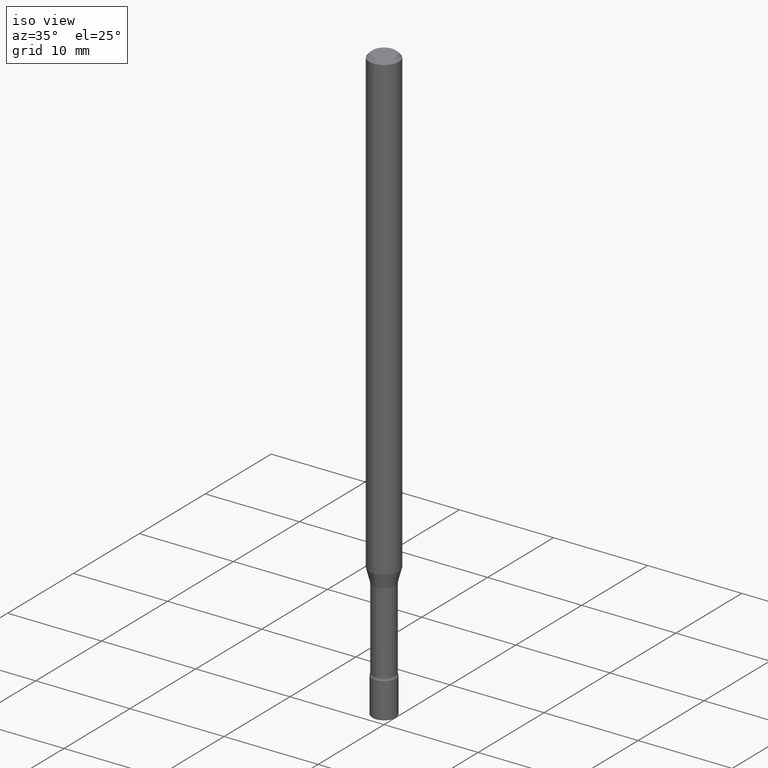
[diagram: clean part render]
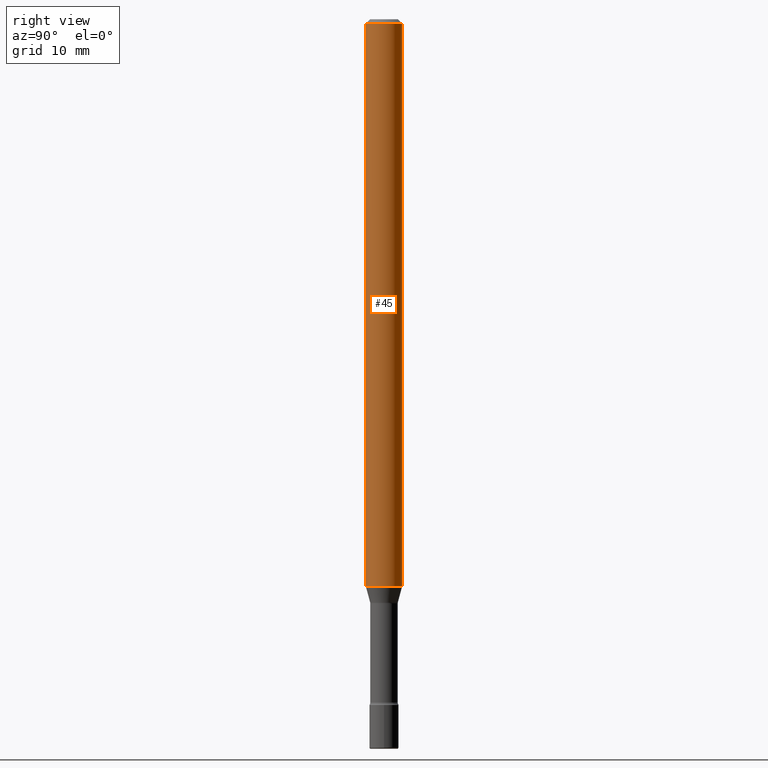
[diagram: tour spotlight — one face highlighted and labeled with its STEP entity id]
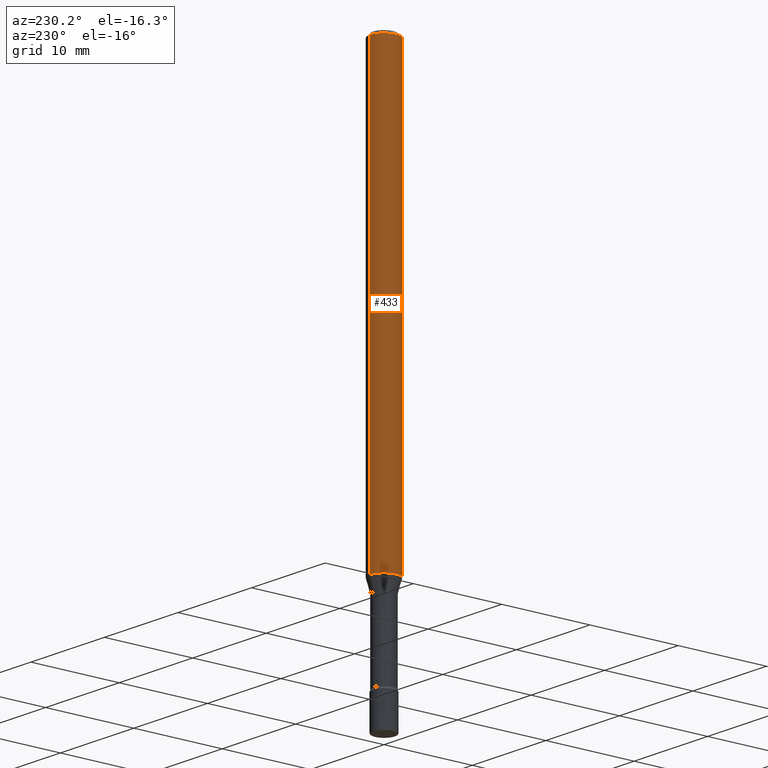
[diagram: tour spotlight — one face highlighted and labeled with its STEP entity id]
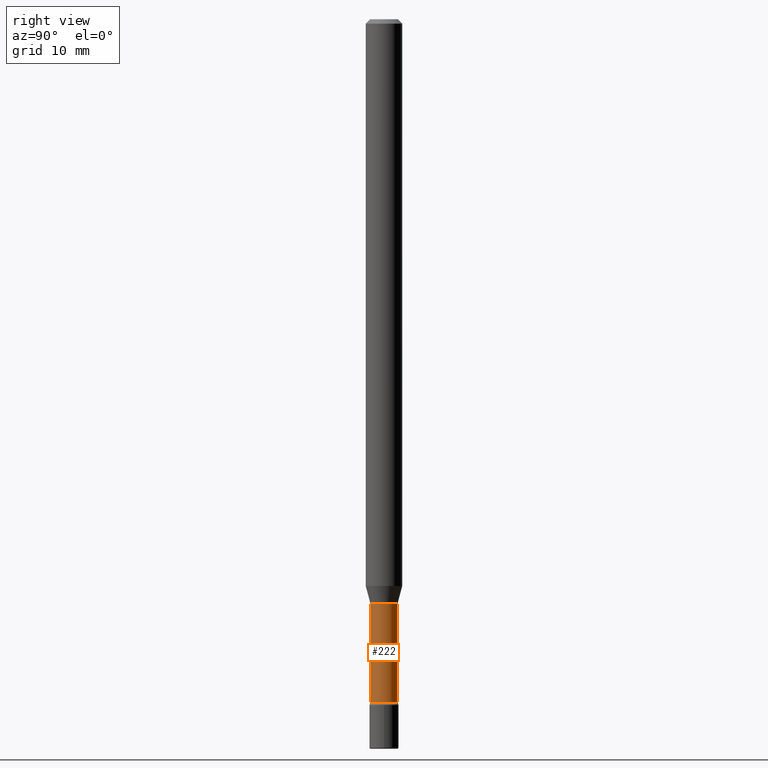
[diagram: tour spotlight — one face highlighted and labeled with its STEP entity id]
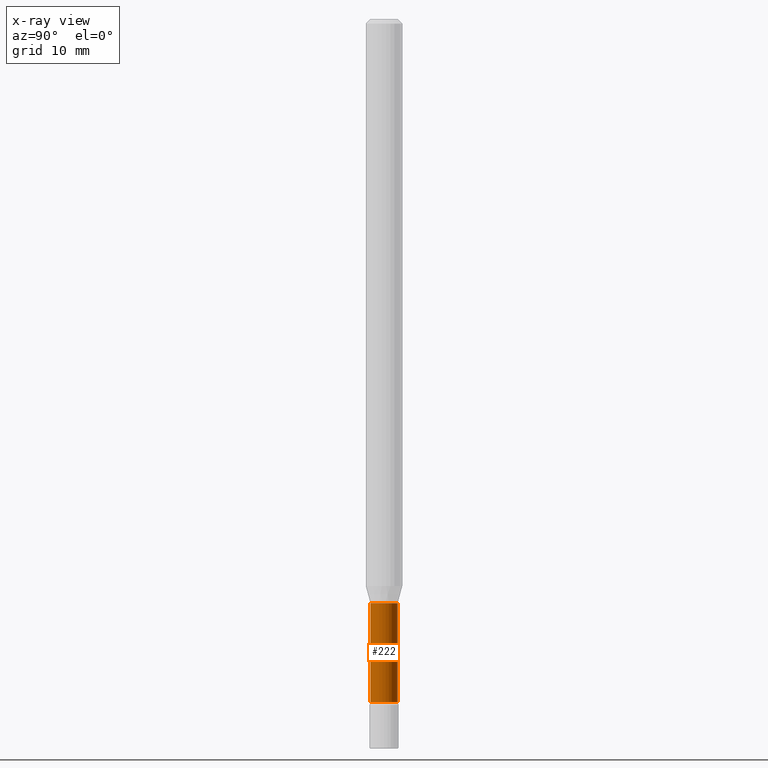
[diagram: x-ray of the same camera — body ghosted, this tour face saturated]
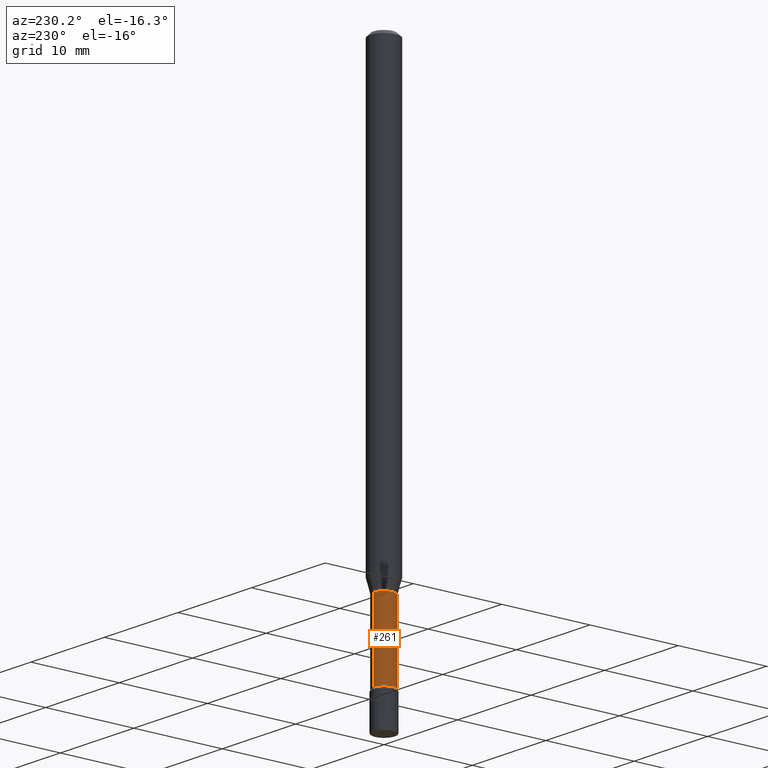
[diagram: tour spotlight — one face highlighted and labeled with its STEP entity id]
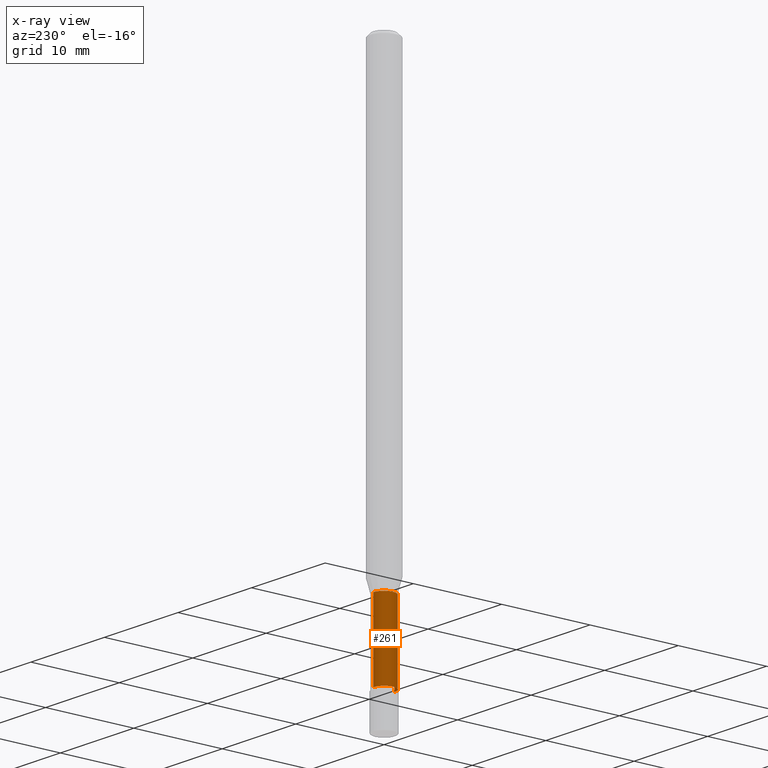
[diagram: x-ray of the same camera — body ghosted, this tour face saturated]
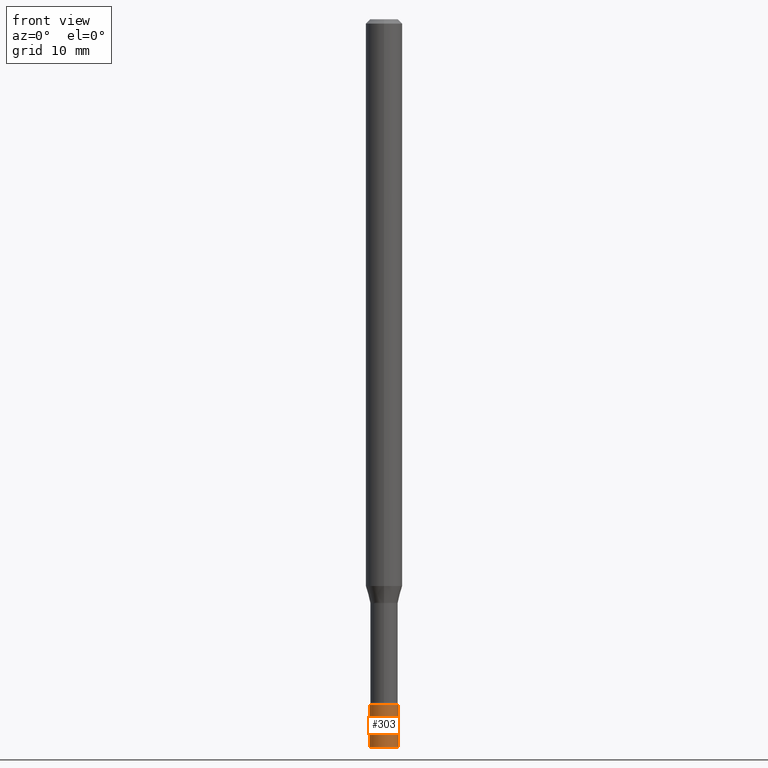
[diagram: tour spotlight — one face highlighted and labeled with its STEP entity id]
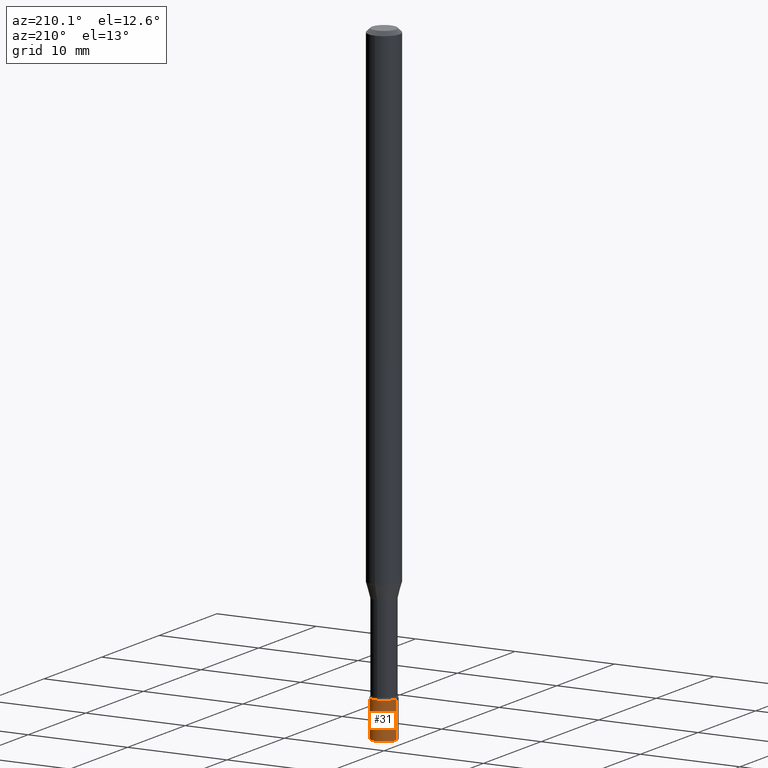
[diagram: tour spotlight — one face highlighted and labeled with its STEP entity id]
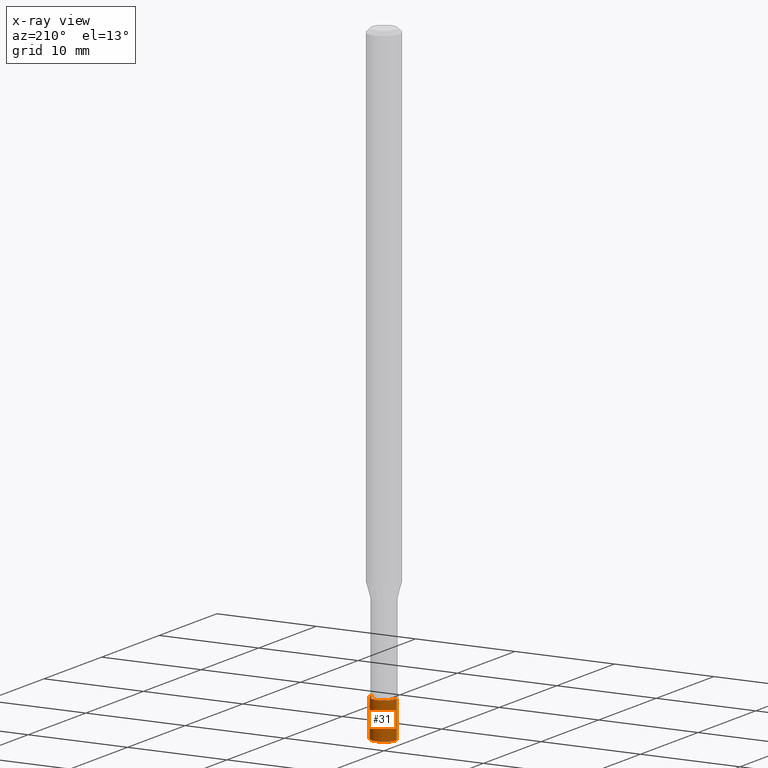
[diagram: x-ray of the same camera — body ghosted, this tour face saturated]
A machine part: a face-by-face anatomy tour. The part has 20 B-rep faces; the first image is the clean iso view, then the 6 largest visible faces are spotlighted one at a time (largest first), each with its STEP entity span.

Face 1 — right view, entity #45. In plain terms, the highlighted cylindrical surface (edge-blend (fillet) strip) has radius 1.5875 mm, axis along (-0, 0, 1).
Definition (entity closure, byte-faithful):
#3 = CARTESIAN_POINT ( 'NONE',  ( -1.169113584055446105E-44, 1.669184350826100908E-30, 4.780733988912460139E-16 ) ) ;
#39 = DIRECTION ( 'NONE',  ( -2.445484649858063703E-29, 3.491458649801748196E-15, 1.000000000000000000 ) ) ;
#45 = ADVANCED_FACE ( 'NONE', ( #59 ), #529, .T. ) ;
#49 = DIRECTION ( 'NONE',  ( -2.445484649858063983E-29, 3.491458649801747802E-15, 1.000000000000000000 ) ) ;
#57 = EDGE_LOOP ( 'NONE', ( #300, #411, #140, #409 ) ) ;
#59 = FACE_OUTER_BOUND ( 'NONE', #57, .T. ) ;
#69 = DIRECTION ( 'NONE',  ( -6.982962677686265922E-15, -1.000000000000000000, 3.491458649801747407E-15 ) ) ;
#116 = CARTESIAN_POINT ( 'NONE',  ( 4.440892098500625669E-16, 0.06250000000000000000, 2.598572332786367763E-16 ) ) ;
#140 = ORIENTED_EDGE ( 'NONE', *, *, #336, .F. ) ;
#147 = EDGE_CURVE ( 'NONE', #487, #272, #471, .T. ) ;
#169 = DIRECTION ( 'NONE',  ( -6.982962677686265922E-15, -1.000000000000000000, 4.370956789862821150E-15 ) ) ;
#191 = AXIS2_PLACEMENT_3D ( 'NONE', #436, #39, #169 ) ;
#212 = VECTOR ( 'NONE', #49, 39.37007874015748143 ) ;
#214 = CARTESIAN_POINT ( 'NONE',  ( -4.364351673553912750E-16, -0.06250000000000005551, -0.01499999999999981036 ) ) ;
#218 = CARTESIAN_POINT ( 'NONE',  ( -4.364351673553439433E-16, -0.06250000000000675848, -1.942153212482682134 ) ) ;
#272 = VERTEX_POINT ( 'NONE', #392 ) ;
#280 = AXIS2_PLACEMENT_3D ( 'NONE', #3, #423, #69 ) ;
#289 = VECTOR ( 'NONE', #331, 39.37007874015748143 ) ;
#300 = ORIENTED_EDGE ( 'NONE', *, *, #353, .T. ) ;
#304 = CARTESIAN_POINT ( 'NONE',  ( 3.668226974787102280E-31, -5.237187974702632377E-17, -0.01500000000000002720 ) ) ;
#315 = VERTEX_POINT ( 'NONE', #214 ) ;
#331 = DIRECTION ( 'NONE',  ( -2.445484649858063983E-29, 3.491458649801747802E-15, 1.000000000000000000 ) ) ;
#336 = EDGE_CURVE ( 'NONE', #315, #272, #476, .T. ) ;
#353 = EDGE_CURVE ( 'NONE', #458, #487, #425, .T. ) ;
#392 = CARTESIAN_POINT ( 'NONE',  ( 4.440892098501103423E-16, 0.06249999999999993755, -0.01500000000000024578 ) ) ;
#401 = CARTESIAN_POINT ( 'NONE',  ( 4.440892098501102436E-16, 0.06249999999999325540, -1.942153212482682800 ) ) ;
#409 = ORIENTED_EDGE ( 'NONE', *, *, #530, .F. ) ;
#411 = ORIENTED_EDGE ( 'NONE', *, *, #147, .T. ) ;
#423 = DIRECTION ( 'NONE',  ( -2.445484649858063703E-29, 3.491458649801748196E-15, 1.000000000000000000 ) ) ;
#425 = CIRCLE ( 'NONE', #191, 0.06250000000000000000 ) ;
#435 = AXIS2_PLACEMENT_3D ( 'NONE', #304, #519, #553 ) ;
#436 = CARTESIAN_POINT ( 'NONE',  ( 4.749505868798926460E-29, -6.780947632962913740E-15, -1.942153212482682578 ) ) ;
#458 = VERTEX_POINT ( 'NONE', #218 ) ;
#471 = LINE ( 'NONE', #116, #289 ) ;
#476 = CIRCLE ( 'NONE', #435, 0.06250000000000000000 ) ;
#486 = CARTESIAN_POINT ( 'NONE',  ( -4.364351673553916201E-16, -0.06250000000000000000, 6.962895645038553008E-16 ) ) ;
#487 = VERTEX_POINT ( 'NONE', #401 ) ;
#519 = DIRECTION ( 'NONE',  ( -2.445484649858063703E-29, 3.491458649801748196E-15, 1.000000000000000000 ) ) ;
#529 = CYLINDRICAL_SURFACE ( 'NONE', #280, 0.06250000000000000000 ) ;
#530 = EDGE_CURVE ( 'NONE', #458, #315, #571, .T. ) ;
#553 = DIRECTION ( 'NONE',  ( -6.982962677686265922E-15, -1.000000000000000000, 3.483106191921935554E-15 ) ) ;
#571 = LINE ( 'NONE', #486, #212 ) ;

Face 2 — auxiliary view, entity #433. In plain terms, the highlighted cylindrical surface (edge-blend (fillet) strip) has radius 1.5875 mm, axis along (-0, 0, 1).
Definition (entity closure, byte-faithful):
#10 = CYLINDRICAL_SURFACE ( 'NONE', #491, 0.06250000000000000000 ) ;
#49 = DIRECTION ( 'NONE',  ( -2.445484649858063983E-29, 3.491458649801747802E-15, 1.000000000000000000 ) ) ;
#65 = CARTESIAN_POINT ( 'NONE',  ( 3.668226974787102280E-31, -5.237187974702632377E-17, -0.01500000000000002720 ) ) ;
#83 = EDGE_CURVE ( 'NONE', #487, #458, #555, .T. ) ;
#97 = AXIS2_PLACEMENT_3D ( 'NONE', #150, #332, #151 ) ;
#116 = CARTESIAN_POINT ( 'NONE',  ( 4.440892098500625669E-16, 0.06250000000000000000, 2.598572332786367763E-16 ) ) ;
#120 = EDGE_CURVE ( 'NONE', #272, #315, #389, .T. ) ;
#132 = EDGE_LOOP ( 'NONE', ( #165, #509, #466, #186 ) ) ;
#147 = EDGE_CURVE ( 'NONE', #487, #272, #471, .T. ) ;
#150 = CARTESIAN_POINT ( 'NONE',  ( 4.749505868798926460E-29, -6.780947632962913740E-15, -1.942153212482682578 ) ) ;
#151 = DIRECTION ( 'NONE',  ( -6.982962677686265922E-15, -1.000000000000000000, 4.370956789862821150E-15 ) ) ;
#154 = DIRECTION ( 'NONE',  ( -6.982962677686265922E-15, -1.000000000000000000, 3.483106191921935554E-15 ) ) ;
#165 = ORIENTED_EDGE ( 'NONE', *, *, #147, .F. ) ;
#186 = ORIENTED_EDGE ( 'NONE', *, *, #120, .F. ) ;
#189 = DIRECTION ( 'NONE',  ( -2.445484649858063703E-29, 3.491458649801748196E-15, 1.000000000000000000 ) ) ;
#212 = VECTOR ( 'NONE', #49, 39.37007874015748143 ) ;
#214 = CARTESIAN_POINT ( 'NONE',  ( -4.364351673553912750E-16, -0.06250000000000005551, -0.01499999999999981036 ) ) ;
#218 = CARTESIAN_POINT ( 'NONE',  ( -4.364351673553439433E-16, -0.06250000000000675848, -1.942153212482682134 ) ) ;
#227 = DIRECTION ( 'NONE',  ( -6.982962677686265922E-15, -1.000000000000000000, 3.491458649801747407E-15 ) ) ;
#272 = VERTEX_POINT ( 'NONE', #392 ) ;
#275 = FACE_OUTER_BOUND ( 'NONE', #132, .T. ) ;
#289 = VECTOR ( 'NONE', #331, 39.37007874015748143 ) ;
#315 = VERTEX_POINT ( 'NONE', #214 ) ;
#331 = DIRECTION ( 'NONE',  ( -2.445484649858063983E-29, 3.491458649801747802E-15, 1.000000000000000000 ) ) ;
#332 = DIRECTION ( 'NONE',  ( -2.445484649858063703E-29, 3.491458649801748196E-15, 1.000000000000000000 ) ) ;
#374 = DIRECTION ( 'NONE',  ( -2.445484649858063703E-29, 3.491458649801748196E-15, 1.000000000000000000 ) ) ;
#389 = CIRCLE ( 'NONE', #512, 0.06250000000000000000 ) ;
#392 = CARTESIAN_POINT ( 'NONE',  ( 4.440892098501103423E-16, 0.06249999999999993755, -0.01500000000000024578 ) ) ;
#401 = CARTESIAN_POINT ( 'NONE',  ( 4.440892098501102436E-16, 0.06249999999999325540, -1.942153212482682800 ) ) ;
#433 = ADVANCED_FACE ( 'NONE', ( #275 ), #10, .T. ) ;
#454 = CARTESIAN_POINT ( 'NONE',  ( -1.169113584055446105E-44, 1.669184350826100908E-30, 4.780733988912460139E-16 ) ) ;
#458 = VERTEX_POINT ( 'NONE', #218 ) ;
#466 = ORIENTED_EDGE ( 'NONE', *, *, #530, .T. ) ;
#471 = LINE ( 'NONE', #116, #289 ) ;
#486 = CARTESIAN_POINT ( 'NONE',  ( -4.364351673553916201E-16, -0.06250000000000000000, 6.962895645038553008E-16 ) ) ;
#487 = VERTEX_POINT ( 'NONE', #401 ) ;
#491 = AXIS2_PLACEMENT_3D ( 'NONE', #454, #189, #227 ) ;
#509 = ORIENTED_EDGE ( 'NONE', *, *, #83, .T. ) ;
#512 = AXIS2_PLACEMENT_3D ( 'NONE', #65, #374, #154 ) ;
#530 = EDGE_CURVE ( 'NONE', #458, #315, #571, .T. ) ;
#555 = CIRCLE ( 'NONE', #97, 0.06250000000000000000 ) ;
#571 = LINE ( 'NONE', #486, #212 ) ;

Face 3 — right view, entity #222. An x-ray twin of the same camera follows (body ghosted, this face saturated) — the face is partly hidden behind the body. In plain terms, the highlighted cylindrical surface (edge-blend (fillet) strip) has radius 1.1938 mm, axis along (-0, 0, 1).
Definition (entity closure, byte-faithful):
#1 = LINE ( 'NONE', #183, #16 ) ;
#5 = LINE ( 'NONE', #251, #171 ) ;
#15 = ORIENTED_EDGE ( 'NONE', *, *, #540, .T. ) ;
#16 = VECTOR ( 'NONE', #361, 39.37007874015748143 ) ;
#21 = VERTEX_POINT ( 'NONE', #225 ) ;
#68 = CIRCLE ( 'NONE', #143, 0.04700000000000000705 ) ;
#84 = FACE_OUTER_BOUND ( 'NONE', #208, .T. ) ;
#119 = DIRECTION ( 'NONE',  ( -6.982962677686265922E-15, -1.000000000000000000, 3.491458649801746619E-15 ) ) ;
#127 = ORIENTED_EDGE ( 'NONE', *, *, #546, .F. ) ;
#130 = EDGE_CURVE ( 'NONE', #278, #21, #68, .T. ) ;
#134 = CARTESIAN_POINT ( 'NONE',  ( 3.339550858073042806E-16, 0.04699999999999300571, -2.001974787463811190 ) ) ;
#141 = DIRECTION ( 'NONE',  ( -2.445484649858063703E-29, 3.491458649801748196E-15, 1.000000000000000000 ) ) ;
#143 = AXIS2_PLACEMENT_3D ( 'NONE', #243, #507, #431 ) ;
#171 = VECTOR ( 'NONE', #325, 39.37007874015748143 ) ;
#183 = CARTESIAN_POINT ( 'NONE',  ( 3.339550858072470388E-16, 0.04700000000000000705, 3.139748423505638775E-16 ) ) ;
#193 = ORIENTED_EDGE ( 'NONE', *, *, #448, .F. ) ;
#208 = EDGE_LOOP ( 'NONE', ( #452, #15, #193, #127 ) ) ;
#210 = DIRECTION ( 'NONE',  ( -2.445484649858063703E-29, 3.491458649801748196E-15, 1.000000000000000000 ) ) ;
#222 = ADVANCED_FACE ( 'NONE', ( #84 ), #260, .T. ) ;
#225 = CARTESIAN_POINT ( 'NONE',  ( 3.446132268437060393E-16, 0.04699999999999183303, -2.341000000000000192 ) ) ;
#243 = CARTESIAN_POINT ( 'NONE',  ( 5.724879565317726717E-29, -8.173504699185892323E-15, -2.340999999999999748 ) ) ;
#251 = CARTESIAN_POINT ( 'NONE',  ( -3.281992458512545531E-16, -0.04700000000000000705, 6.421719554319281504E-16 ) ) ;
#260 = CYLINDRICAL_SURFACE ( 'NONE', #398, 0.04700000000000000705 ) ;
#278 = VERTEX_POINT ( 'NONE', #395 ) ;
#323 = DIRECTION ( 'NONE',  ( -6.982962677686265922E-15, -1.000000000000000000, 5.812442539711197800E-15 ) ) ;
#325 = DIRECTION ( 'NONE',  ( -2.445484649858063983E-29, 3.491458649801747802E-15, 1.000000000000000000 ) ) ;
#330 = AXIS2_PLACEMENT_3D ( 'NONE', #358, #141, #323 ) ;
#344 = CARTESIAN_POINT ( 'NONE',  ( -3.281992458512055945E-16, -0.04700000000000699452, -2.001974787463810745 ) ) ;
#346 = CARTESIAN_POINT ( 'NONE',  ( -1.169113584055446105E-44, 1.669184350826100908E-30, 4.780733988912460139E-16 ) ) ;
#358 = CARTESIAN_POINT ( 'NONE',  ( 4.895798612145609407E-29, -6.989812188375539244E-15, -2.001974787463811190 ) ) ;
#361 = DIRECTION ( 'NONE',  ( -2.445484649858063983E-29, 3.491458649801747802E-15, 1.000000000000000000 ) ) ;
#395 = CARTESIAN_POINT ( 'NONE',  ( -3.281992458511972621E-16, -0.04700000000000817413, -2.340999999999999304 ) ) ;
#398 = AXIS2_PLACEMENT_3D ( 'NONE', #346, #210, #119 ) ;
#418 = CIRCLE ( 'NONE', #330, 0.04700000000000000705 ) ;
#431 = DIRECTION ( 'NONE',  ( -6.982962677686265922E-15, -1.000000000000000000, 5.812442539711197800E-15 ) ) ;
#448 = EDGE_CURVE ( 'NONE', #569, #463, #418, .T. ) ;
#452 = ORIENTED_EDGE ( 'NONE', *, *, #130, .T. ) ;
#463 = VERTEX_POINT ( 'NONE', #134 ) ;
#507 = DIRECTION ( 'NONE',  ( -2.445484649858063703E-29, 3.491458649801748196E-15, 1.000000000000000000 ) ) ;
#540 = EDGE_CURVE ( 'NONE', #21, #463, #1, .T. ) ;
#546 = EDGE_CURVE ( 'NONE', #278, #569, #5, .T. ) ;
#569 = VERTEX_POINT ( 'NONE', #344 ) ;

Face 4 — auxiliary view, entity #261. An x-ray twin of the same camera follows (body ghosted, this face saturated) — the face is partly hidden behind the body. In plain terms, the highlighted cylindrical surface (edge-blend (fillet) strip) has radius 1.1938 mm, axis along (-0, 0, 1).
Definition (entity closure, byte-faithful):
#1 = LINE ( 'NONE', #183, #16 ) ;
#5 = LINE ( 'NONE', #251, #171 ) ;
#16 = VECTOR ( 'NONE', #361, 39.37007874015748143 ) ;
#20 = DIRECTION ( 'NONE',  ( -6.982962677686265922E-15, -1.000000000000000000, 5.812442539711197800E-15 ) ) ;
#21 = VERTEX_POINT ( 'NONE', #225 ) ;
#28 = CARTESIAN_POINT ( 'NONE',  ( 4.895798612145609407E-29, -6.989812188375539244E-15, -2.001974787463811190 ) ) ;
#79 = DIRECTION ( 'NONE',  ( -6.982962677686265922E-15, -1.000000000000000000, 3.491458649801746619E-15 ) ) ;
#90 = ORIENTED_EDGE ( 'NONE', *, *, #540, .F. ) ;
#100 = CARTESIAN_POINT ( 'NONE',  ( 5.724879565317726717E-29, -8.173504699185892323E-15, -2.340999999999999748 ) ) ;
#113 = EDGE_CURVE ( 'NONE', #463, #569, #563, .T. ) ;
#134 = CARTESIAN_POINT ( 'NONE',  ( 3.339550858073042806E-16, 0.04699999999999300571, -2.001974787463811190 ) ) ;
#145 = DIRECTION ( 'NONE',  ( -2.445484649858063703E-29, 3.491458649801748196E-15, 1.000000000000000000 ) ) ;
#170 = AXIS2_PLACEMENT_3D ( 'NONE', #100, #145, #413 ) ;
#171 = VECTOR ( 'NONE', #325, 39.37007874015748143 ) ;
#183 = CARTESIAN_POINT ( 'NONE',  ( 3.339550858072470388E-16, 0.04700000000000000705, 3.139748423505638775E-16 ) ) ;
#225 = CARTESIAN_POINT ( 'NONE',  ( 3.446132268437060393E-16, 0.04699999999999183303, -2.341000000000000192 ) ) ;
#240 = ORIENTED_EDGE ( 'NONE', *, *, #424, .T. ) ;
#251 = CARTESIAN_POINT ( 'NONE',  ( -3.281992458512545531E-16, -0.04700000000000000705, 6.421719554319281504E-16 ) ) ;
#261 = ADVANCED_FACE ( 'NONE', ( #566 ), #340, .T. ) ;
#278 = VERTEX_POINT ( 'NONE', #395 ) ;
#301 = DIRECTION ( 'NONE',  ( -2.445484649858063703E-29, 3.491458649801748196E-15, 1.000000000000000000 ) ) ;
#321 = AXIS2_PLACEMENT_3D ( 'NONE', #28, #326, #20 ) ;
#325 = DIRECTION ( 'NONE',  ( -2.445484649858063983E-29, 3.491458649801747802E-15, 1.000000000000000000 ) ) ;
#326 = DIRECTION ( 'NONE',  ( -2.445484649858063703E-29, 3.491458649801748196E-15, 1.000000000000000000 ) ) ;
#327 = EDGE_LOOP ( 'NONE', ( #90, #240, #517, #449 ) ) ;
#340 = CYLINDRICAL_SURFACE ( 'NONE', #541, 0.04700000000000000705 ) ;
#344 = CARTESIAN_POINT ( 'NONE',  ( -3.281992458512055945E-16, -0.04700000000000699452, -2.001974787463810745 ) ) ;
#361 = DIRECTION ( 'NONE',  ( -2.445484649858063983E-29, 3.491458649801747802E-15, 1.000000000000000000 ) ) ;
#395 = CARTESIAN_POINT ( 'NONE',  ( -3.281992458511972621E-16, -0.04700000000000817413, -2.340999999999999304 ) ) ;
#413 = DIRECTION ( 'NONE',  ( -6.982962677686265922E-15, -1.000000000000000000, 5.812442539711197800E-15 ) ) ;
#424 = EDGE_CURVE ( 'NONE', #21, #278, #468, .T. ) ;
#449 = ORIENTED_EDGE ( 'NONE', *, *, #113, .F. ) ;
#463 = VERTEX_POINT ( 'NONE', #134 ) ;
#468 = CIRCLE ( 'NONE', #170, 0.04700000000000000705 ) ;
#517 = ORIENTED_EDGE ( 'NONE', *, *, #546, .T. ) ;
#525 = CARTESIAN_POINT ( 'NONE',  ( -1.169113584055446105E-44, 1.669184350826100908E-30, 4.780733988912460139E-16 ) ) ;
#540 = EDGE_CURVE ( 'NONE', #21, #463, #1, .T. ) ;
#541 = AXIS2_PLACEMENT_3D ( 'NONE', #525, #301, #79 ) ;
#546 = EDGE_CURVE ( 'NONE', #278, #569, #5, .T. ) ;
#563 = CIRCLE ( 'NONE', #321, 0.04700000000000000705 ) ;
#566 = FACE_OUTER_BOUND ( 'NONE', #327, .T. ) ;
#569 = VERTEX_POINT ( 'NONE', #344 ) ;

Face 5 — front view, entity #303. In plain terms, the highlighted cylindrical surface (edge-blend (fillet) strip) has radius 1.27 mm, axis along (-0, 0, 1).
Definition (entity closure, byte-faithful):
#7 = ORIENTED_EDGE ( 'NONE', *, *, #199, .F. ) ;
#17 = LINE ( 'NONE', #194, #461 ) ;
#18 = EDGE_CURVE ( 'NONE', #228, #111, #451, .T. ) ;
#48 = ORIENTED_EDGE ( 'NONE', *, *, #155, .T. ) ;
#63 = AXIS2_PLACEMENT_3D ( 'NONE', #352, #168, #75 ) ;
#75 = DIRECTION ( 'NONE',  ( 1.000000000000000000, -6.982962677686267499E-15, 4.876176775795936353E-29 ) ) ;
#111 = VERTEX_POINT ( 'NONE', #510 ) ;
#115 = AXIS2_PLACEMENT_3D ( 'NONE', #544, #299, #499 ) ;
#152 = EDGE_LOOP ( 'NONE', ( #7, #48, #366, #338 ) ) ;
#155 = EDGE_CURVE ( 'NONE', #255, #362, #297, .T. ) ;
#160 = DIRECTION ( 'NONE',  ( -2.445468806185136877E-29, 3.491481338843145188E-15, 1.000000000000000000 ) ) ;
#166 = LINE ( 'NONE', #515, #441 ) ;
#168 = DIRECTION ( 'NONE',  ( -2.445468806185136597E-29, 3.491481338843145583E-15, 1.000000000000000000 ) ) ;
#190 = DIRECTION ( 'NONE',  ( -2.445468806185136597E-29, 3.491481338843145583E-15, 1.000000000000000000 ) ) ;
#194 = CARTESIAN_POINT ( 'NONE',  ( -0.05000000000000000278, 3.552713678800501127E-16, -2.459467545127453311E-30 ) ) ;
#199 = EDGE_CURVE ( 'NONE', #255, #228, #17, .T. ) ;
#216 = CARTESIAN_POINT ( 'NONE',  ( -0.04999999999999989175, -8.355974572533597921E-15, -2.495000000000000107 ) ) ;
#228 = VERTEX_POINT ( 'NONE', #399 ) ;
#255 = VERTEX_POINT ( 'NONE', #216 ) ;
#256 = AXIS2_PLACEMENT_3D ( 'NONE', #324, #190, #542 ) ;
#257 = CYLINDRICAL_SURFACE ( 'NONE', #63, 0.05000000000000000278 ) ;
#297 = CIRCLE ( 'NONE', #115, 0.05000000000000000278 ) ;
#299 = DIRECTION ( 'NONE',  ( -2.445468806185136597E-29, 3.491481338843145583E-15, 1.000000000000000000 ) ) ;
#303 = ADVANCED_FACE ( 'NONE', ( #308 ), #257, .T. ) ;
#308 = FACE_OUTER_BOUND ( 'NONE', #152, .T. ) ;
#319 = EDGE_CURVE ( 'NONE', #362, #111, #166, .T. ) ;
#324 = CARTESIAN_POINT ( 'NONE',  ( 5.746851694535070554E-29, -8.204981146281391784E-15, -2.350000000000000089 ) ) ;
#338 = ORIENTED_EDGE ( 'NONE', *, *, #18, .F. ) ;
#352 = CARTESIAN_POINT ( 'NONE',  ( 0.000000000000000000, 0.000000000000000000, 0.000000000000000000 ) ) ;
#362 = VERTEX_POINT ( 'NONE', #477 ) ;
#366 = ORIENTED_EDGE ( 'NONE', *, *, #319, .T. ) ;
#376 = DIRECTION ( 'NONE',  ( -2.445468806185136877E-29, 3.491481338843145188E-15, 1.000000000000000000 ) ) ;
#399 = CARTESIAN_POINT ( 'NONE',  ( -0.05000000000000000278, -8.102842175467469648E-15, -2.350000000000000089 ) ) ;
#441 = VECTOR ( 'NONE', #160, 39.37007874015748143 ) ;
#451 = CIRCLE ( 'NONE', #256, 0.05000000000000000278 ) ;
#461 = VECTOR ( 'NONE', #376, 39.37007874015748143 ) ;
#477 = CARTESIAN_POINT ( 'NONE',  ( 0.04999999999999989175, -9.060394074297958509E-15, -2.495000000000000107 ) ) ;
#499 = DIRECTION ( 'NONE',  ( 1.000000000000000000, -6.982962677686254878E-15, 0.000000000000000000 ) ) ;
#510 = CARTESIAN_POINT ( 'NONE',  ( 0.05000000000000000278, -8.554129280165706697E-15, -2.350000000000000089 ) ) ;
#515 = CARTESIAN_POINT ( 'NONE',  ( 0.05000000000000000278, -3.491481338843133848E-16, 2.438088387897968247E-30 ) ) ;
#542 = DIRECTION ( 'NONE',  ( 1.000000000000000000, -6.982962677686274599E-15, 0.000000000000000000 ) ) ;
#544 = CARTESIAN_POINT ( 'NONE',  ( 6.101444671431915719E-29, -8.711245940413648329E-15, -2.495000000000000107 ) ) ;

Face 6 — auxiliary view, entity #31. An x-ray twin of the same camera follows (body ghosted, this face saturated) — the face is partly hidden behind the body. In plain terms, the highlighted cylindrical surface (edge-blend (fillet) strip) has radius 1.27 mm, axis along (-0, 0, 1).
Definition (entity closure, byte-faithful):
#17 = LINE ( 'NONE', #194, #461 ) ;
#31 = ADVANCED_FACE ( 'NONE', ( #496 ), #407, .T. ) ;
#37 = AXIS2_PLACEMENT_3D ( 'NONE', #560, #438, #207 ) ;
#88 = CIRCLE ( 'NONE', #493, 0.05000000000000000278 ) ;
#93 = ORIENTED_EDGE ( 'NONE', *, *, #199, .T. ) ;
#98 = CIRCLE ( 'NONE', #37, 0.05000000000000000278 ) ;
#105 = CARTESIAN_POINT ( 'NONE',  ( 0.000000000000000000, 0.000000000000000000, 0.000000000000000000 ) ) ;
#111 = VERTEX_POINT ( 'NONE', #510 ) ;
#121 = ORIENTED_EDGE ( 'NONE', *, *, #291, .F. ) ;
#138 = CARTESIAN_POINT ( 'NONE',  ( 6.101444671431915719E-29, -8.711245940413648329E-15, -2.495000000000000107 ) ) ;
#160 = DIRECTION ( 'NONE',  ( -2.445468806185136877E-29, 3.491481338843145188E-15, 1.000000000000000000 ) ) ;
#166 = LINE ( 'NONE', #515, #441 ) ;
#194 = CARTESIAN_POINT ( 'NONE',  ( -0.05000000000000000278, 3.552713678800501127E-16, -2.459467545127453311E-30 ) ) ;
#199 = EDGE_CURVE ( 'NONE', #255, #228, #17, .T. ) ;
#200 = AXIS2_PLACEMENT_3D ( 'NONE', #105, #534, #359 ) ;
#207 = DIRECTION ( 'NONE',  ( 1.000000000000000000, -6.982962677686274599E-15, 0.000000000000000000 ) ) ;
#216 = CARTESIAN_POINT ( 'NONE',  ( -0.04999999999999989175, -8.355974572533597921E-15, -2.495000000000000107 ) ) ;
#228 = VERTEX_POINT ( 'NONE', #399 ) ;
#255 = VERTEX_POINT ( 'NONE', #216 ) ;
#291 = EDGE_CURVE ( 'NONE', #111, #228, #98, .T. ) ;
#314 = DIRECTION ( 'NONE',  ( 1.000000000000000000, -6.982962677686254878E-15, 0.000000000000000000 ) ) ;
#319 = EDGE_CURVE ( 'NONE', #362, #111, #166, .T. ) ;
#359 = DIRECTION ( 'NONE',  ( 1.000000000000000000, -6.982962677686267499E-15, 4.876176775795936353E-29 ) ) ;
#362 = VERTEX_POINT ( 'NONE', #477 ) ;
#376 = DIRECTION ( 'NONE',  ( -2.445468806185136877E-29, 3.491481338843145188E-15, 1.000000000000000000 ) ) ;
#399 = CARTESIAN_POINT ( 'NONE',  ( -0.05000000000000000278, -8.102842175467469648E-15, -2.350000000000000089 ) ) ;
#403 = DIRECTION ( 'NONE',  ( -2.445468806185136597E-29, 3.491481338843145583E-15, 1.000000000000000000 ) ) ;
#407 = CYLINDRICAL_SURFACE ( 'NONE', #200, 0.05000000000000000278 ) ;
#412 = ORIENTED_EDGE ( 'NONE', *, *, #319, .F. ) ;
#414 = ORIENTED_EDGE ( 'NONE', *, *, #522, .T. ) ;
#438 = DIRECTION ( 'NONE',  ( -2.445468806185136597E-29, 3.491481338843145583E-15, 1.000000000000000000 ) ) ;
#441 = VECTOR ( 'NONE', #160, 39.37007874015748143 ) ;
#461 = VECTOR ( 'NONE', #376, 39.37007874015748143 ) ;
#477 = CARTESIAN_POINT ( 'NONE',  ( 0.04999999999999989175, -9.060394074297958509E-15, -2.495000000000000107 ) ) ;
#493 = AXIS2_PLACEMENT_3D ( 'NONE', #138, #403, #314 ) ;
#496 = FACE_OUTER_BOUND ( 'NONE', #572, .T. ) ;
#510 = CARTESIAN_POINT ( 'NONE',  ( 0.05000000000000000278, -8.554129280165706697E-15, -2.350000000000000089 ) ) ;
#515 = CARTESIAN_POINT ( 'NONE',  ( 0.05000000000000000278, -3.491481338843133848E-16, 2.438088387897968247E-30 ) ) ;
#522 = EDGE_CURVE ( 'NONE', #362, #255, #88, .T. ) ;
#534 = DIRECTION ( 'NONE',  ( -2.445468806185136597E-29, 3.491481338843145583E-15, 1.000000000000000000 ) ) ;
#560 = CARTESIAN_POINT ( 'NONE',  ( 5.746851694535070554E-29, -8.204981146281391784E-15, -2.350000000000000089 ) ) ;
#572 = EDGE_LOOP ( 'NONE', ( #414, #93, #121, #412 ) ) ;